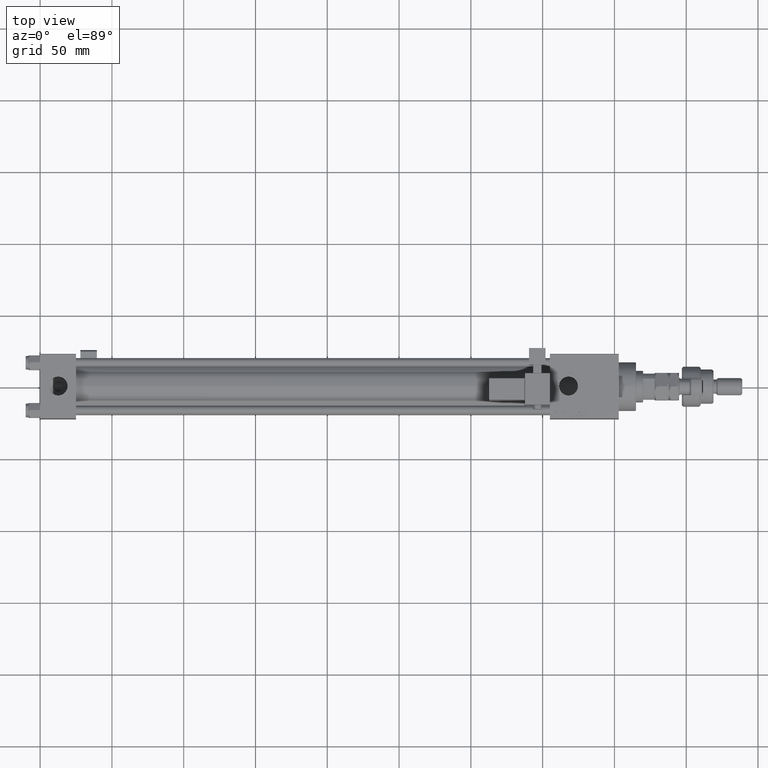
[diagram: clean part render]
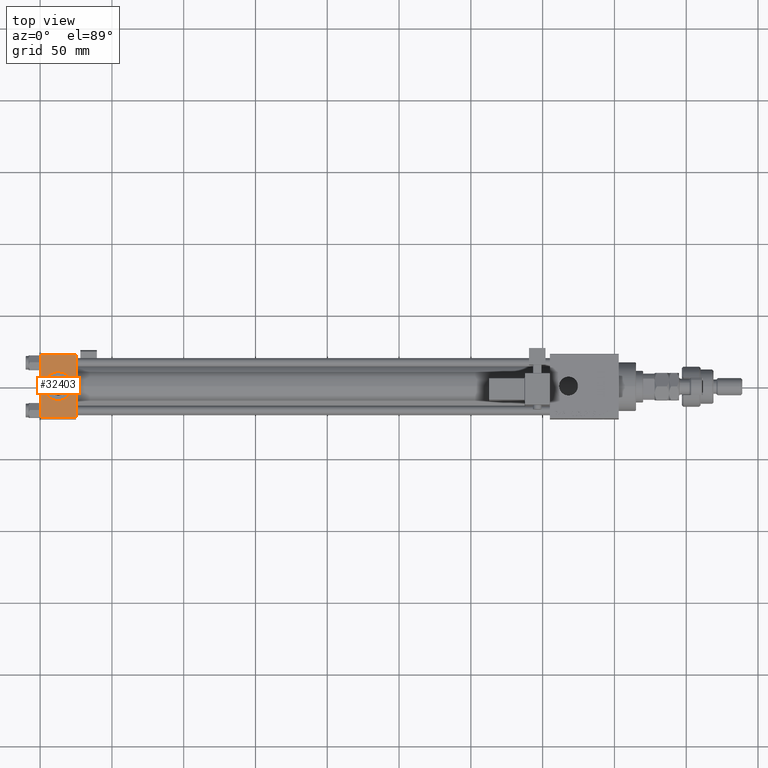
[diagram: same view with one face highlighted and labeled with its STEP entity id]
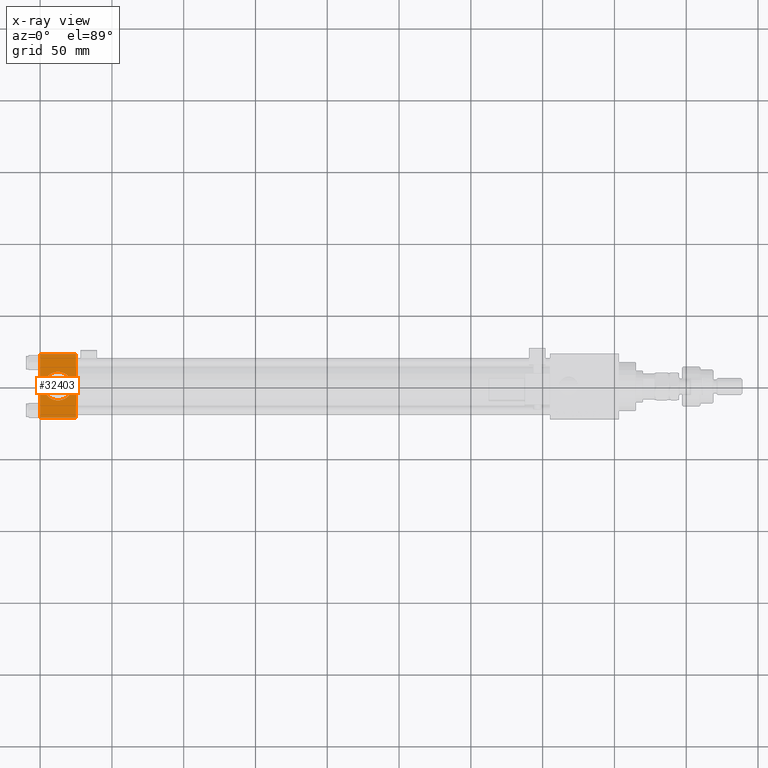
[diagram: x-ray of the same camera — body ghosted, the highlighted face saturated]
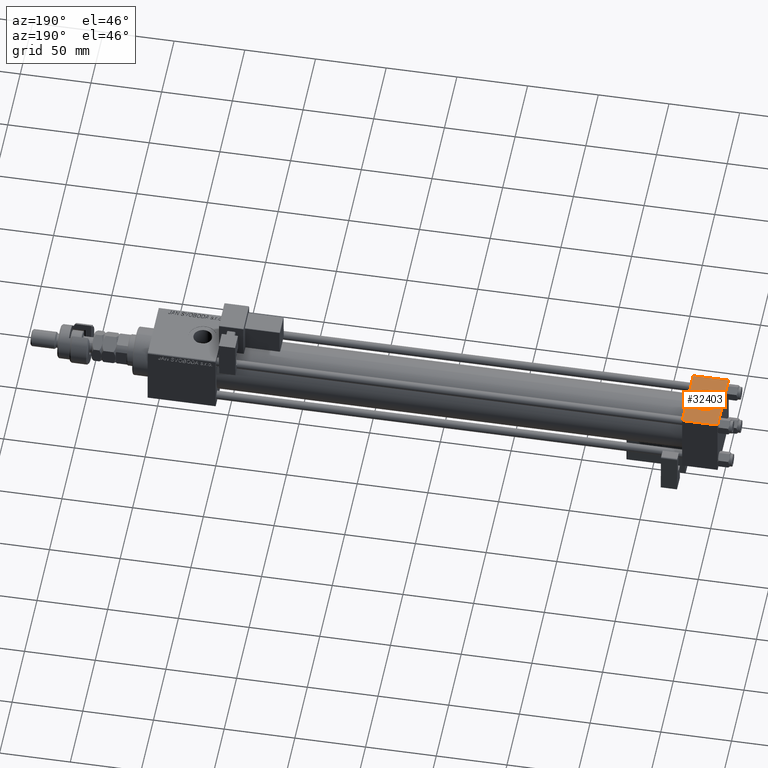
[diagram: same view with one face highlighted and labeled with its STEP entity id]
A machine part, top view. The second image highlights one B-rep face of the part: STEP entity #32403.
The next image is the same camera in x-ray: the body ghosted, the highlighted face saturated — about 0% of this face is hidden behind the body in this view.
A second angle (auxiliary view) of the same face is appended — the face is thin or edge-on in the first view.
In plain terms, the highlighted planar face has unit normal (0, 0, -1).
Its self-contained STEP definition (entity closure, byte-faithful):
#4 = VECTOR ( 'NONE', #5342, 1000.000000000000000 ) ;
#892 = CARTESIAN_POINT ( 'NONE',  ( 2.500000000000003997, -5.100766768294543310E-16, 22.50000000000000000 ) ) ;
#2455 = CARTESIAN_POINT ( 'NONE',  ( 25.00000000000000000, 22.50000000000000000, 22.50000000000000355 ) ) ;
#3133 = VERTEX_POINT ( 'NONE', #892 ) ;
#4297 = DIRECTION ( 'NONE',  ( 0.000000000000000000, 7.709882115452476934E-17, -1.000000000000000000 ) ) ;
#5270 = CARTESIAN_POINT ( 'NONE',  ( 25.00000000000000000, 21.99999999999999289, 22.50000000000000355 ) ) ;
#5342 = DIRECTION ( 'NONE',  ( -1.000000000000000000, 0.000000000000000000, 0.000000000000000000 ) ) ;
#6166 = CARTESIAN_POINT ( 'NONE',  ( 0.000000000000000000, 21.99999999999999289, 22.50000000000000355 ) ) ;
#6294 = CARTESIAN_POINT ( 'NONE',  ( 0.000000000000000000, 22.50000000000000000, 22.50000000000000355 ) ) ;
#7079 = EDGE_LOOP ( 'NONE', ( #38508, #12122, #13935, #29769 ) ) ;
#8980 = AXIS2_PLACEMENT_3D ( 'NONE', #49311, #15391, #55081 ) ;
#9305 = LINE ( 'NONE', #26404, #10220 ) ;
#10220 = VECTOR ( 'NONE', #39561, 1000.000000000000000 ) ;
#11119 = EDGE_CURVE ( 'NONE', #19403, #46154, #49026, .T. ) ;
#11210 = EDGE_CURVE ( 'NONE', #3133, #26179, #11658, .T. ) ;
#11658 = CIRCLE ( 'NONE', #8980, 9.999999999999998224 ) ;
#11888 = FACE_OUTER_BOUND ( 'NONE', #7079, .T. ) ;
#12122 = ORIENTED_EDGE ( 'NONE', *, *, #47802, .T. ) ;
#13056 = CARTESIAN_POINT ( 'NONE',  ( 0.000000000000000000, -21.99999999999997868, 22.50000000000000000 ) ) ;
#13058 = CARTESIAN_POINT ( 'NONE',  ( 22.50000000000000000, -1.734723475976807094E-15, 22.50000000000000000 ) ) ;
#13935 = ORIENTED_EDGE ( 'NONE', *, *, #15725, .F. ) ;
#15136 = ORIENTED_EDGE ( 'NONE', *, *, #11210, .F. ) ;
#15391 = DIRECTION ( 'NONE',  ( 0.000000000000000000, 0.000000000000000000, 1.000000000000000000 ) ) ;
#15406 = CIRCLE ( 'NONE', #46736, 9.999999999999998224 ) ;
#15725 = EDGE_CURVE ( 'NONE', #19403, #42428, #40572, .T. ) ;
#16345 = FACE_BOUND ( 'NONE', #31777, .T. ) ;
#19403 = VERTEX_POINT ( 'NONE', #5270 ) ;
#20831 = CARTESIAN_POINT ( 'NONE',  ( 25.00000000000000000, 22.50000000000000000, 22.50000000000000355 ) ) ;
#23390 = DIRECTION ( 'NONE',  ( 0.000000000000000000, -1.000000000000000000, -7.709882115452476934E-17 ) ) ;
#25155 = CARTESIAN_POINT ( 'NONE',  ( 25.00000000000000000, -21.99999999999997868, 22.50000000000000000 ) ) ;
#25382 = VECTOR ( 'NONE', #36368, 1000.000000000000000 ) ;
#26179 = VERTEX_POINT ( 'NONE', #13058 ) ;
#26404 = CARTESIAN_POINT ( 'NONE',  ( 25.00000000000000000, -21.99999999999999289, 22.50000000000000000 ) ) ;
#29769 = ORIENTED_EDGE ( 'NONE', *, *, #11119, .T. ) ;
#30090 = VERTEX_POINT ( 'NONE', #13056 ) ;
#31564 = CARTESIAN_POINT ( 'NONE',  ( 0.000000000000000000, 21.99999999999999289, 22.50000000000000355 ) ) ;
#31777 = EDGE_LOOP ( 'NONE', ( #50362, #15136 ) ) ;
#32403 = ADVANCED_FACE ( 'NONE', ( #16345, #11888 ), #54208, .F. ) ;
#36368 = DIRECTION ( 'NONE',  ( 0.000000000000000000, -1.000000000000000000, -7.709882115452476934E-17 ) ) ;
#36741 = DIRECTION ( 'NONE',  ( 0.000000000000000000, 0.000000000000000000, 1.000000000000000000 ) ) ;
#37361 = LINE ( 'NONE', #6294, #53930 ) ;
#38508 = ORIENTED_EDGE ( 'NONE', *, *, #41435, .T. ) ;
#39539 = AXIS2_PLACEMENT_3D ( 'NONE', #20831, #4297, #55023 ) ;
#39561 = DIRECTION ( 'NONE',  ( 1.000000000000000000, 0.000000000000000000, 0.000000000000000000 ) ) ;
#40382 = EDGE_CURVE ( 'NONE', #26179, #3133, #15406, .T. ) ;
#40572 = LINE ( 'NONE', #2455, #25382 ) ;
#41435 = EDGE_CURVE ( 'NONE', #46154, #30090, #37361, .T. ) ;
#42428 = VERTEX_POINT ( 'NONE', #25155 ) ;
#45965 = CARTESIAN_POINT ( 'NONE',  ( 12.50000000000000000, -1.734723475976807094E-15, 22.50000000000000000 ) ) ;
#46154 = VERTEX_POINT ( 'NONE', #31564 ) ;
#46736 = AXIS2_PLACEMENT_3D ( 'NONE', #45965, #36741, #53838 ) ;
#47802 = EDGE_CURVE ( 'NONE', #30090, #42428, #9305, .T. ) ;
#49026 = LINE ( 'NONE', #6166, #4 ) ;
#49311 = CARTESIAN_POINT ( 'NONE',  ( 12.50000000000000000, -1.734723475976807094E-15, 22.50000000000000000 ) ) ;
#50362 = ORIENTED_EDGE ( 'NONE', *, *, #40382, .F. ) ;
#53838 = DIRECTION ( 'NONE',  ( 1.000000000000000000, 0.000000000000000000, 0.000000000000000000 ) ) ;
#53930 = VECTOR ( 'NONE', #23390, 1000.000000000000000 ) ;
#54208 = PLANE ( 'NONE',  #39539 ) ;
#55023 = DIRECTION ( 'NONE',  ( 0.000000000000000000, 1.000000000000000000, 7.709882115452476934E-17 ) ) ;
#55081 = DIRECTION ( 'NONE',  ( 1.000000000000000000, 0.000000000000000000, 0.000000000000000000 ) ) ;